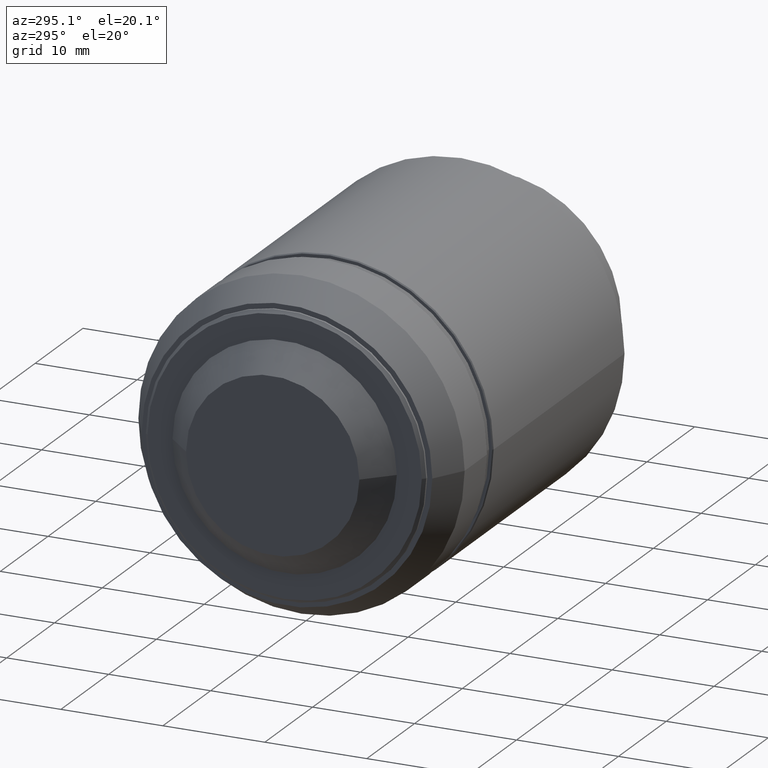
[diagram: clean part render]
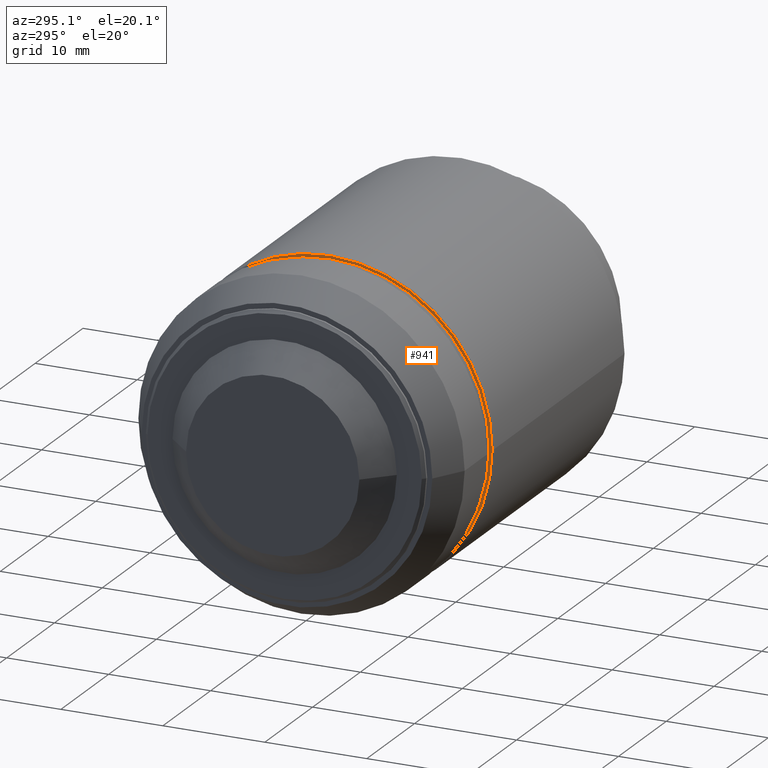
[diagram: same view with one face highlighted and labeled with its STEP entity id]
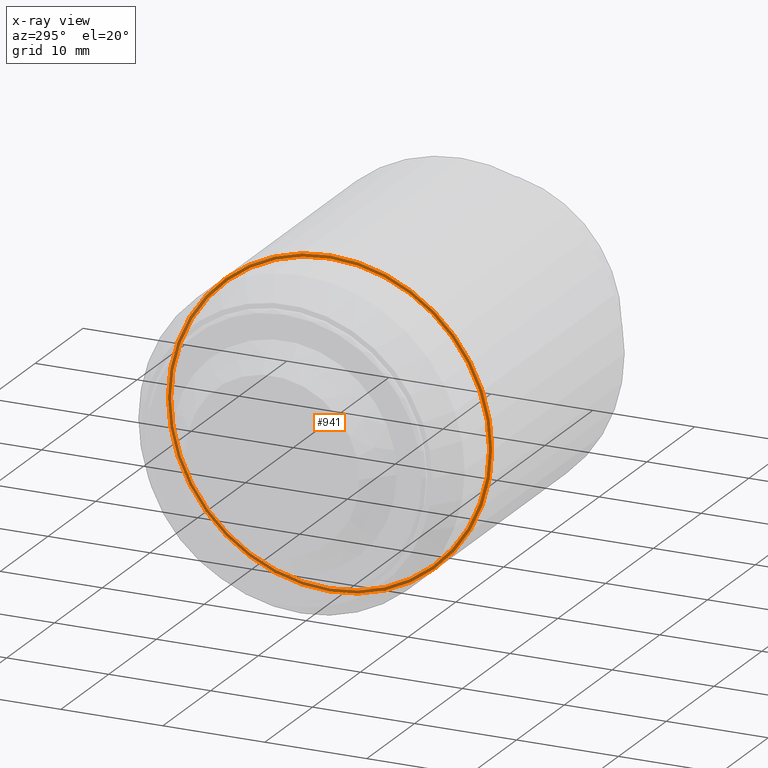
[diagram: x-ray of the same camera — body ghosted, the highlighted face saturated]
A machine part, auxiliary view. The second image highlights one B-rep face of the part: STEP entity #941.
The next image is the same camera in x-ray: the body ghosted, the highlighted face saturated — about 47% of this face is hidden behind the body in this view.
In plain terms, the highlighted planar face has unit normal (1, 0, 0).
Its self-contained STEP definition (entity closure, byte-faithful):
#28 = CIRCLE ( 'NONE', #1311, 15.90000000000000036 ) ;
#56 = CARTESIAN_POINT ( 'NONE',  ( 8.000000000000000000, -15.90000000000000036, 0.000000000000000000 ) ) ;
#57 = EDGE_CURVE ( 'NONE', #262, #1061, #272, .T. ) ;
#119 = CIRCLE ( 'NONE', #1111, 15.59999999999999964 ) ;
#140 = VERTEX_POINT ( 'NONE', #56 ) ;
#179 = CARTESIAN_POINT ( 'NONE',  ( 8.000000000000000000, -15.59999999999999964, 0.000000000000000000 ) ) ;
#262 = VERTEX_POINT ( 'NONE', #956 ) ;
#272 = CIRCLE ( 'NONE', #1199, 15.59999999999999964 ) ;
#280 = DIRECTION ( 'NONE',  ( 1.000000000000000000, 1.421085471520199908E-16, 0.000000000000000000 ) ) ;
#281 = EDGE_CURVE ( 'NONE', #140, #912, #28, .T. ) ;
#292 = ORIENTED_EDGE ( 'NONE', *, *, #281, .F. ) ;
#343 = DIRECTION ( 'NONE',  ( 1.000000000000000000, 1.421085471520199908E-16, 0.000000000000000000 ) ) ;
#368 = CARTESIAN_POINT ( 'NONE',  ( 8.000000000000000000, -4.263256414560600169E-15, 0.000000000000000000 ) ) ;
#397 = ORIENTED_EDGE ( 'NONE', *, *, #984, .F. ) ;
#441 = PLANE ( 'NONE',  #509 ) ;
#457 = DIRECTION ( 'NONE',  ( -1.421085471520199908E-16, 1.000000000000000000, 0.000000000000000000 ) ) ;
#509 = AXIS2_PLACEMENT_3D ( 'NONE', #787, #343, #457 ) ;
#548 = EDGE_LOOP ( 'NONE', ( #292, #397 ) ) ;
#585 = FACE_BOUND ( 'NONE', #1021, .T. ) ;
#638 = CARTESIAN_POINT ( 'NONE',  ( 8.000000000000000000, -4.263256414560600169E-15, 0.000000000000000000 ) ) ;
#675 = AXIS2_PLACEMENT_3D ( 'NONE', #368, #280, #930 ) ;
#707 = DIRECTION ( 'NONE',  ( -1.112002228190260952E-16, 1.000000000000000000, 0.000000000000000000 ) ) ;
#787 = CARTESIAN_POINT ( 'NONE',  ( 8.000000000000000000, 15.75000000000000000, 0.000000000000000000 ) ) ;
#817 = DIRECTION ( 'NONE',  ( 1.000000000000000000, 1.421085471520199908E-16, 0.000000000000000000 ) ) ;
#884 = CIRCLE ( 'NONE', #675, 15.90000000000000036 ) ;
#909 = CARTESIAN_POINT ( 'NONE',  ( 8.000000000000000000, 15.90000000000000036, -1.947188410644289802E-15 ) ) ;
#912 = VERTEX_POINT ( 'NONE', #909 ) ;
#916 = CARTESIAN_POINT ( 'NONE',  ( 8.000000000000000000, -4.263256414560600169E-15, 0.000000000000000000 ) ) ;
#924 = CARTESIAN_POINT ( 'NONE',  ( 8.000000000000000000, -4.263256414560600169E-15, 0.000000000000000000 ) ) ;
#930 = DIRECTION ( 'NONE',  ( -1.091021054073463524E-16, 1.000000000000000000, 0.000000000000000000 ) ) ;
#937 = DIRECTION ( 'NONE',  ( -1.091021054073463524E-16, 1.000000000000000000, 0.000000000000000000 ) ) ;
#941 = ADVANCED_FACE ( 'NONE', ( #1253, #585 ), #441, .F. ) ;
#956 = CARTESIAN_POINT ( 'NONE',  ( 8.000000000000000000, 15.59999999999999964, -1.910449006669870126E-15 ) ) ;
#963 = EDGE_CURVE ( 'NONE', #1061, #262, #119, .T. ) ;
#984 = EDGE_CURVE ( 'NONE', #912, #140, #884, .T. ) ;
#1021 = EDGE_LOOP ( 'NONE', ( #1182, #1139 ) ) ;
#1031 = DIRECTION ( 'NONE',  ( -1.112002228190260952E-16, 1.000000000000000000, 0.000000000000000000 ) ) ;
#1061 = VERTEX_POINT ( 'NONE', #179 ) ;
#1111 = AXIS2_PLACEMENT_3D ( 'NONE', #924, #1362, #1031 ) ;
#1139 = ORIENTED_EDGE ( 'NONE', *, *, #57, .T. ) ;
#1182 = ORIENTED_EDGE ( 'NONE', *, *, #963, .T. ) ;
#1199 = AXIS2_PLACEMENT_3D ( 'NONE', #916, #817, #707 ) ;
#1253 = FACE_OUTER_BOUND ( 'NONE', #548, .T. ) ;
#1311 = AXIS2_PLACEMENT_3D ( 'NONE', #638, #1392, #937 ) ;
#1362 = DIRECTION ( 'NONE',  ( 1.000000000000000000, 1.421085471520199908E-16, 0.000000000000000000 ) ) ;
#1392 = DIRECTION ( 'NONE',  ( 1.000000000000000000, 1.421085471520199908E-16, 0.000000000000000000 ) ) ;